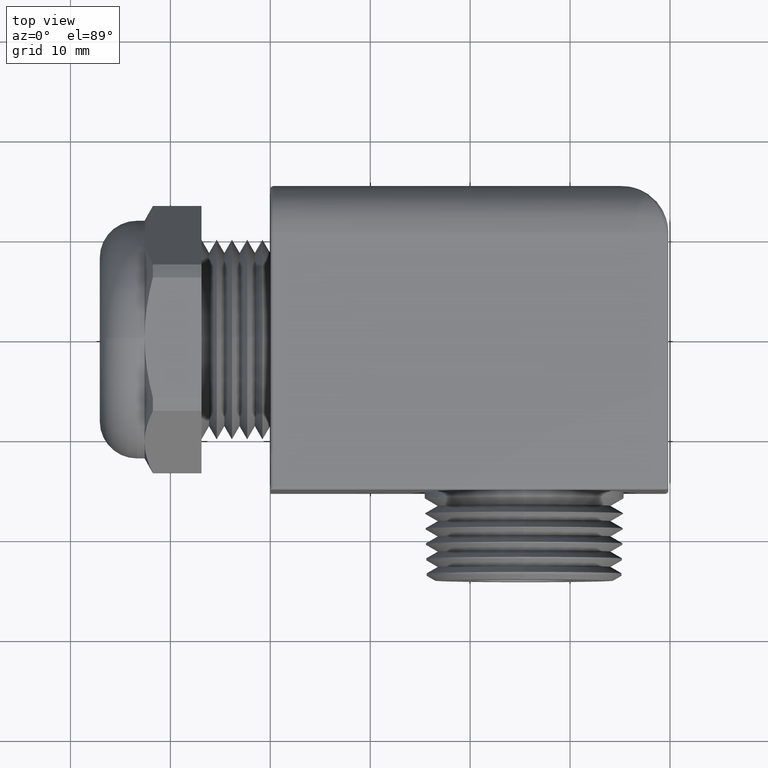
[diagram: clean part render]
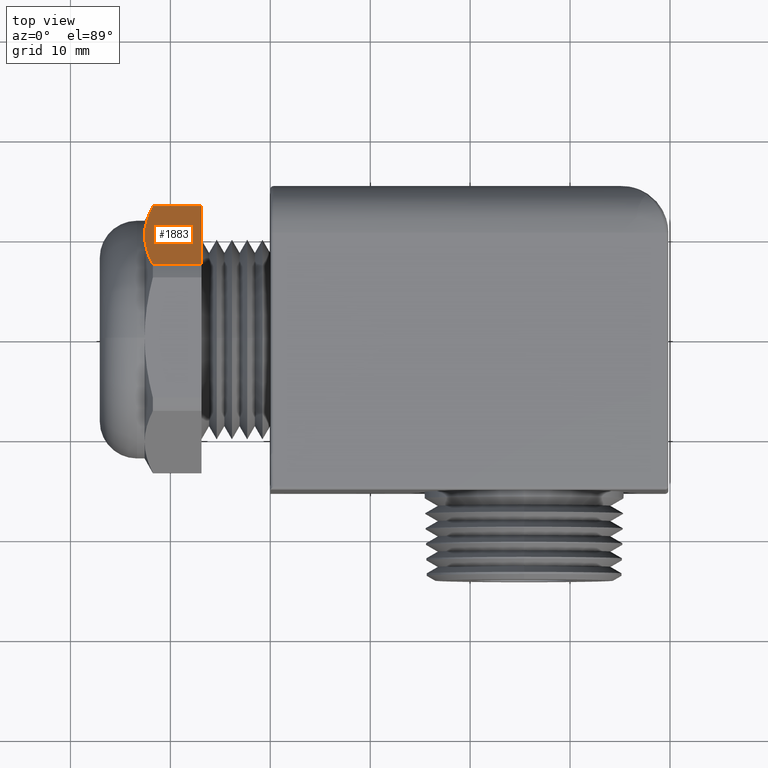
[diagram: same view with one face highlighted and labeled with its STEP entity id]
A machine part, top view. The second image highlights one B-rep face of the part: STEP entity #1883.
In plain terms, the highlighted planar face has unit normal (0, -0.866, -0.5).
Its self-contained STEP definition (entity closure, byte-faithful):
#1580 = VERTEX_POINT ( 'NONE', #3253 ) ;
#1631 = EDGE_CURVE ( 'NONE', #1782, #1785, #3135, .T. ) ;
#1636 = VERTEX_POINT ( 'NONE', #3125 ) ;
#1638 = ORIENTED_EDGE ( 'NONE', *, *, #1631, .F. ) ;
#1723 = EDGE_CURVE ( 'NONE', #1746, #1636, #3390, .T. ) ;
#1746 = VERTEX_POINT ( 'NONE', #3428 ) ;
#1782 = VERTEX_POINT ( 'NONE', #3678 ) ;
#1785 = VERTEX_POINT ( 'NONE', #3676 ) ;
#1850 = EDGE_CURVE ( 'NONE', #1782, #1746, #3572, .T. ) ;
#1851 = ORIENTED_EDGE ( 'NONE', *, *, #1723, .T. ) ;
#1852 = ORIENTED_EDGE ( 'NONE', *, *, #1878, .F. ) ;
#1866 = ORIENTED_EDGE ( 'NONE', *, *, #1850, .T. ) ;
#1878 = EDGE_CURVE ( 'NONE', #1580, #1636, #3986, .T. ) ;
#1880 = EDGE_LOOP ( 'NONE', ( #1881, #1638, #1866, #1851, #1852 ) ) ;
#1881 = ORIENTED_EDGE ( 'NONE', *, *, #1882, .F. ) ;
#1882 = EDGE_CURVE ( 'NONE', #1785, #1580, #3969, .T. ) ;
#1883 = ADVANCED_FACE ( 'NONE', ( #3970 ), #3851, .F. ) ;
#3125 = CARTESIAN_POINT ( 'NONE',  ( -0.4625953395545472400, 0.5255614297801199900, 0.02970090112228898300 ) ) ;
#3132 = DIRECTION ( 'NONE',  ( -1.000000000000000000, 0.0000000000000000000, 0.0000000000000000000 ) ) ;
#3133 = VECTOR ( 'NONE', #3132, 39.37007874015748100 ) ;
#3134 = CARTESIAN_POINT ( 'NONE',  ( 1.232614984114216400, 0.2885024497772519800, 0.4402990988777108500 ) ) ;
#3135 = LINE ( 'NONE', #3134, #3133 ) ;
#3253 = CARTESIAN_POINT ( 'NONE',  ( -0.4951578947368421300, 0.4070319397786860100, 0.2349999999999999300 ) ) ;
#3387 = DIRECTION ( 'NONE',  ( -1.000000000000000000, 0.0000000000000000000, 0.0000000000000000000 ) ) ;
#3388 = VECTOR ( 'NONE', #3387, 39.37007874015748100 ) ;
#3389 = CARTESIAN_POINT ( 'NONE',  ( 1.232614984114216400, 0.5255614297801199900, 0.02970090112228898300 ) ) ;
#3390 = LINE ( 'NONE', #3389, #3388 ) ;
#3428 = CARTESIAN_POINT ( 'NONE',  ( -0.2711578947368420400, 0.5255614297801199900, 0.02970090112228897200 ) ) ;
#3561 = DIRECTION ( 'NONE',  ( 0.0000000000000000000, 0.4999999999999998900, -0.8660254037844386000 ) ) ;
#3562 = VECTOR ( 'NONE', #3561, 39.37007874015748900 ) ;
#3571 = CARTESIAN_POINT ( 'NONE',  ( -0.2711578947368419900, 0.5255614297801199900, 0.02970090112228900000 ) ) ;
#3572 = LINE ( 'NONE', #3571, #3562 ) ;
#3676 = CARTESIAN_POINT ( 'NONE',  ( -0.4625953395545472400, 0.2885024497772519800, 0.4402990988777108500 ) ) ;
#3678 = CARTESIAN_POINT ( 'NONE',  ( -0.2711578947368420400, 0.2885024497772519800, 0.4402990988777108500 ) ) ;
#3847 = DIRECTION ( 'NONE',  ( 0.0000000000000000000, 0.4999999999999998900, -0.8660254037844386000 ) ) ;
#3848 = DIRECTION ( 'NONE',  ( 0.0000000000000000000, -0.8660254037844387100, -0.4999999999999999400 ) ) ;
#3849 = CARTESIAN_POINT ( 'NONE',  ( 1.232614984114216400, 0.5255614297801199900, 0.02970090112228900000 ) ) ;
#3850 = AXIS2_PLACEMENT_3D ( 'NONE', #3849, #3848, #3847 ) ;
#3851 = PLANE ( 'NONE',  #3850 ) ;
#3852 = CARTESIAN_POINT ( 'NONE',  ( -0.4951578947368421300, 0.4070319397786860100, 0.2349999999999999300 ) ) ;
#3853 = CARTESIAN_POINT ( 'NONE',  ( -0.4951578947368421900, 0.3869777354411503300, 0.2697349008179796800 ) ) ;
#3854 = CARTESIAN_POINT ( 'NONE',  ( -0.4921546067548840900, 0.3670891542369590400, 0.3041829339540985100 ) ) ;
#3855 = CARTESIAN_POINT ( 'NONE',  ( -0.4809295128662802200, 0.3275997788457695700, 0.3725805384907989700 ) ) ;
#3856 = CARTESIAN_POINT ( 'NONE',  ( -0.4727329663616173200, 0.3079975916717090900, 0.4065325226157464100 ) ) ;
#3857 = CARTESIAN_POINT ( 'NONE',  ( -0.4625953395545472400, 0.2885024497772519800, 0.4402990988777108500 ) ) ;
#3969 = B_SPLINE_CURVE_WITH_KNOTS ( 'NONE', 3,
 ( #3857, #3856, #3855, #3854, #3853, #3852 ),
 .UNSPECIFIED., .F., .F.,
 ( 4, 2, 4 ),
 ( 2.361309699379318400E-007, 0.003038075244306930900, 0.006075914357643924000 ),
 .UNSPECIFIED. ) ;
#3970 = FACE_OUTER_BOUND ( 'NONE', #1880, .T. ) ;
#3977 = CARTESIAN_POINT ( 'NONE',  ( -0.4625953395545472400, 0.5255614297801199900, 0.02970090112228898300 ) ) ;
#3978 = CARTESIAN_POINT ( 'NONE',  ( -0.4726850758228872100, 0.5061583836853464900, 0.06330796278003739100 ) ) ;
#3979 = CARTESIAN_POINT ( 'NONE',  ( -0.4808808538796332000, 0.4866002124151254700, 0.09718370912319439200 ) ) ;
#3980 = CARTESIAN_POINT ( 'NONE',  ( -0.4893246889459829700, 0.4569476339447770500, 0.1485434816092607600 ) ) ;
#3981 = CARTESIAN_POINT ( 'NONE',  ( -0.4914973392523883700, 0.4470108610952940900, 0.1657544770478362700 ) ) ;
#3982 = CARTESIAN_POINT ( 'NONE',  ( -0.4944187900572141700, 0.4270206945807670200, 0.2003784611027592800 ) ) ;
#3983 = CARTESIAN_POINT ( 'NONE',  ( -0.4951578947368421300, 0.4169912288112725400, 0.2177500053882961700 ) ) ;
#3984 = CARTESIAN_POINT ( 'NONE',  ( -0.4951578947368421300, 0.4070319397786860100, 0.2349999999999999300 ) ) ;
#3986 = B_SPLINE_CURVE_WITH_KNOTS ( 'NONE', 3,
 ( #3984, #3983, #3982, #3981, #3980, #3979, #3978, #3977 ),
 .UNSPECIFIED., .F., .F.,
 ( 4, 2, 2, 4 ),
 ( 0.006075914357643924000, 0.007584561484949401900, 0.009093208612254878900, 0.01211050286686583100 ),
 .UNSPECIFIED. ) ;